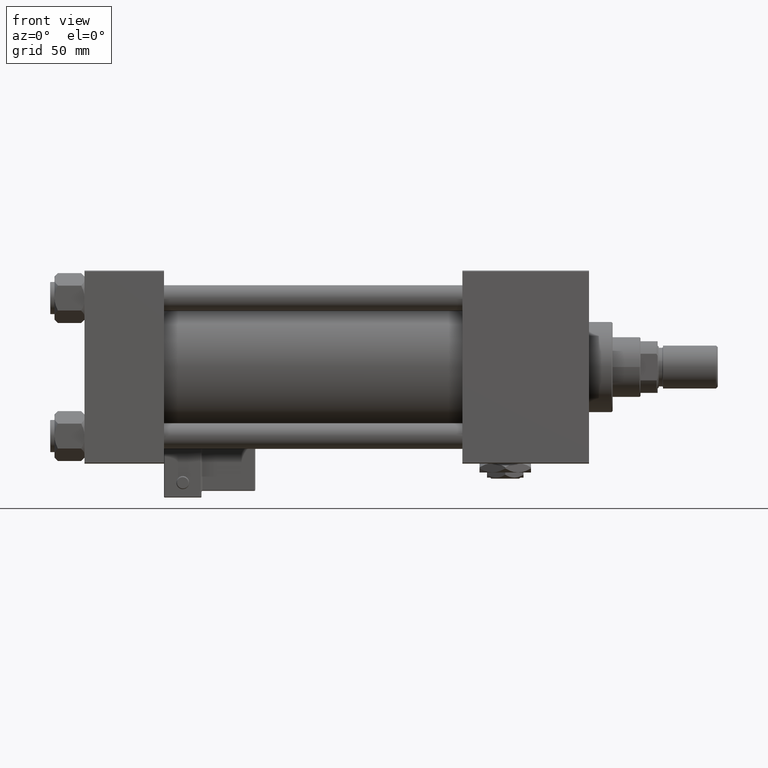
[diagram: clean part render]
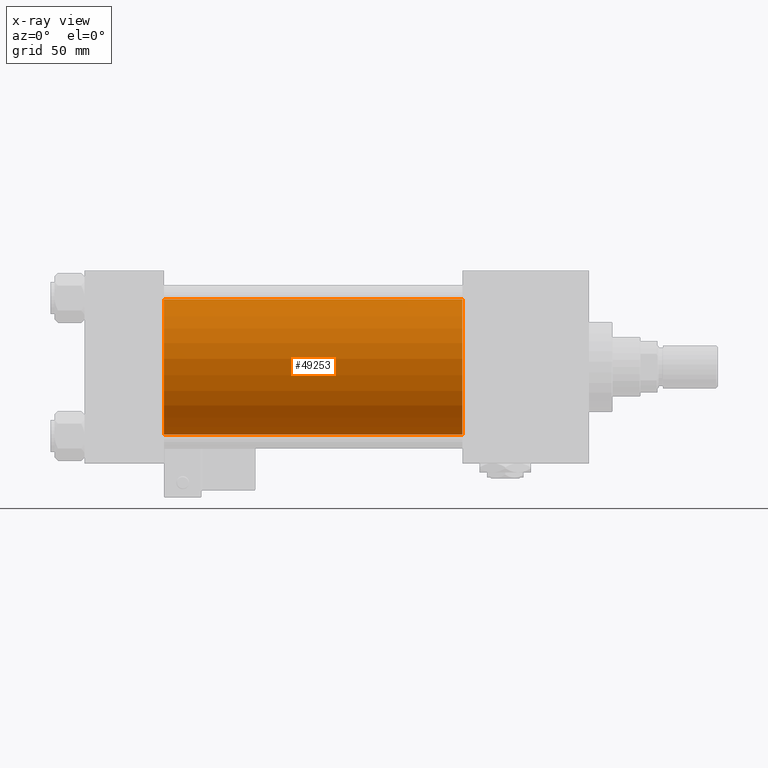
[diagram: x-ray — body ghosted, one internal face saturated and labeled with its STEP entity id]
A machine part, front view, then the same camera in x-ray: the body is ghosted and one INTERNAL B-rep face — a face not visible from any outside direction — is saturated and labeled: STEP entity #49253.
In plain terms, the highlighted cylindrical surface (partial cylindrical patch) has radius 31.5 mm, axis along (-1, -0, -0).
Its self-contained STEP definition (entity closure, byte-faithful):
#1115 = DIRECTION ( 'NONE',  ( 0.000000000000000000, 0.000000000000000000, -1.000000000000000000 ) ) ;
#4307 = ORIENTED_EDGE ( 'NONE', *, *, #46538, .F. ) ;
#4447 = DIRECTION ( 'NONE',  ( 1.000000000000000000, 0.000000000000000000, 0.000000000000000000 ) ) ;
#4648 = VECTOR ( 'NONE', #38705, 1000.000000000000000 ) ;
#5066 = LINE ( 'NONE', #21882, #4648 ) ;
#5419 = DIRECTION ( 'NONE',  ( -1.000000000000000000, -0.000000000000000000, -0.000000000000000000 ) ) ;
#8978 = EDGE_LOOP ( 'NONE', ( #54200, #35643, #53301, #4307 ) ) ;
#12695 = AXIS2_PLACEMENT_3D ( 'NONE', #49371, #53245, #20691 ) ;
#13290 = CARTESIAN_POINT ( 'NONE',  ( 37.00000000000000000, -2.602085213965210642E-15, 0.000000000000000000 ) ) ;
#13360 = DIRECTION ( 'NONE',  ( -1.000000000000000000, -0.000000000000000000, -0.000000000000000000 ) ) ;
#16896 = AXIS2_PLACEMENT_3D ( 'NONE', #13290, #4447, #1115 ) ;
#17965 = AXIS2_PLACEMENT_3D ( 'NONE', #34926, #5419, #51210 ) ;
#20691 = DIRECTION ( 'NONE',  ( 0.000000000000000000, 0.000000000000000000, -1.000000000000000000 ) ) ;
#21586 = VERTEX_POINT ( 'NONE', #23890 ) ;
#21621 = CARTESIAN_POINT ( 'NONE',  ( 176.0000000000000284, 1.255552203348951850E-15, -31.50000000000000000 ) ) ;
#21882 = CARTESIAN_POINT ( 'NONE',  ( 176.0000000000000284, -2.602085213965210642E-15, 31.50000000000000000 ) ) ;
#23351 = EDGE_CURVE ( 'NONE', #26171, #39255, #53862, .T. ) ;
#23890 = CARTESIAN_POINT ( 'NONE',  ( 176.0000000000000284, -2.602085213965210642E-15, 31.50000000000000000 ) ) ;
#25821 = FACE_OUTER_BOUND ( 'NONE', #8978, .T. ) ;
#26171 = VERTEX_POINT ( 'NONE', #50735 ) ;
#26382 = CARTESIAN_POINT ( 'NONE',  ( 176.0000000000000284, 1.255552203348951850E-15, -31.50000000000000000 ) ) ;
#29888 = LINE ( 'NONE', #21621, #46962 ) ;
#34625 = VERTEX_POINT ( 'NONE', #26382 ) ;
#34926 = CARTESIAN_POINT ( 'NONE',  ( 176.0000000000000284, -2.602085213965210642E-15, 0.000000000000000000 ) ) ;
#35643 = ORIENTED_EDGE ( 'NONE', *, *, #46535, .T. ) ;
#36450 = CIRCLE ( 'NONE', #12695, 31.50000000000000000 ) ;
#38705 = DIRECTION ( 'NONE',  ( -1.000000000000000000, -0.000000000000000000, -0.000000000000000000 ) ) ;
#39255 = VERTEX_POINT ( 'NONE', #46920 ) ;
#43209 = CYLINDRICAL_SURFACE ( 'NONE', #17965, 31.50000000000000000 ) ;
#46535 = EDGE_CURVE ( 'NONE', #34625, #39255, #29888, .T. ) ;
#46538 = EDGE_CURVE ( 'NONE', #21586, #26171, #5066, .T. ) ;
#46920 = CARTESIAN_POINT ( 'NONE',  ( 37.00000000000000000, 1.255552203348951850E-15, -31.50000000000000000 ) ) ;
#46962 = VECTOR ( 'NONE', #13360, 1000.000000000000000 ) ;
#49253 = ADVANCED_FACE ( 'NONE', ( #25821 ), #43209, .F. ) ;
#49371 = CARTESIAN_POINT ( 'NONE',  ( 176.0000000000000284, -2.602085213965210642E-15, 0.000000000000000000 ) ) ;
#49868 = EDGE_CURVE ( 'NONE', #21586, #34625, #36450, .T. ) ;
#50735 = CARTESIAN_POINT ( 'NONE',  ( 37.00000000000000000, -2.602085213965210642E-15, 31.50000000000000000 ) ) ;
#51210 = DIRECTION ( 'NONE',  ( 0.000000000000000000, 0.000000000000000000, 1.000000000000000000 ) ) ;
#53245 = DIRECTION ( 'NONE',  ( 1.000000000000000000, 0.000000000000000000, 0.000000000000000000 ) ) ;
#53301 = ORIENTED_EDGE ( 'NONE', *, *, #23351, .F. ) ;
#53862 = CIRCLE ( 'NONE', #16896, 31.50000000000000000 ) ;
#54200 = ORIENTED_EDGE ( 'NONE', *, *, #49868, .T. ) ;